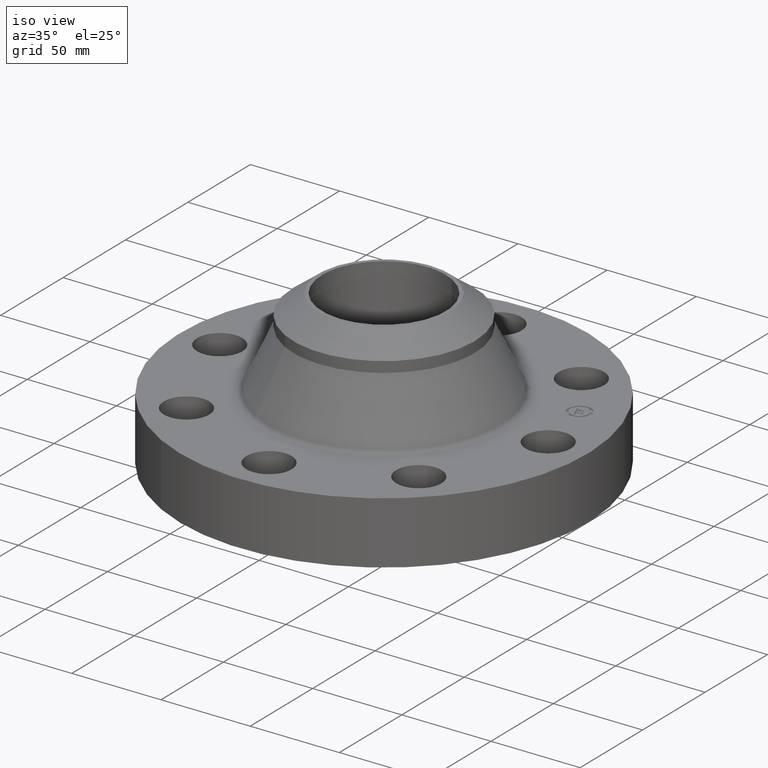
[diagram: clean part render]
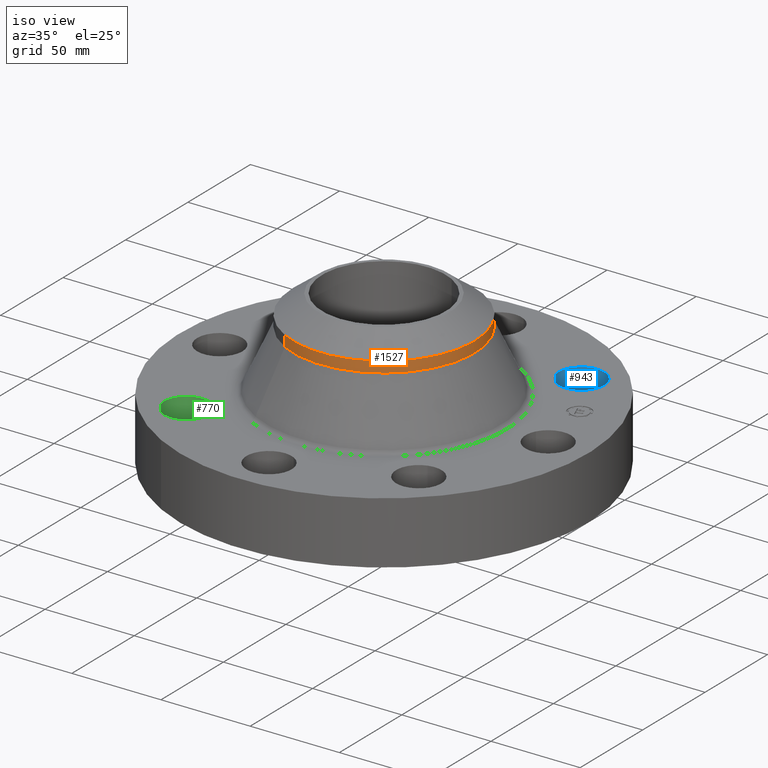
[diagram: same view with three faces highlighted in distinct colors, each labeled with its STEP entity id]
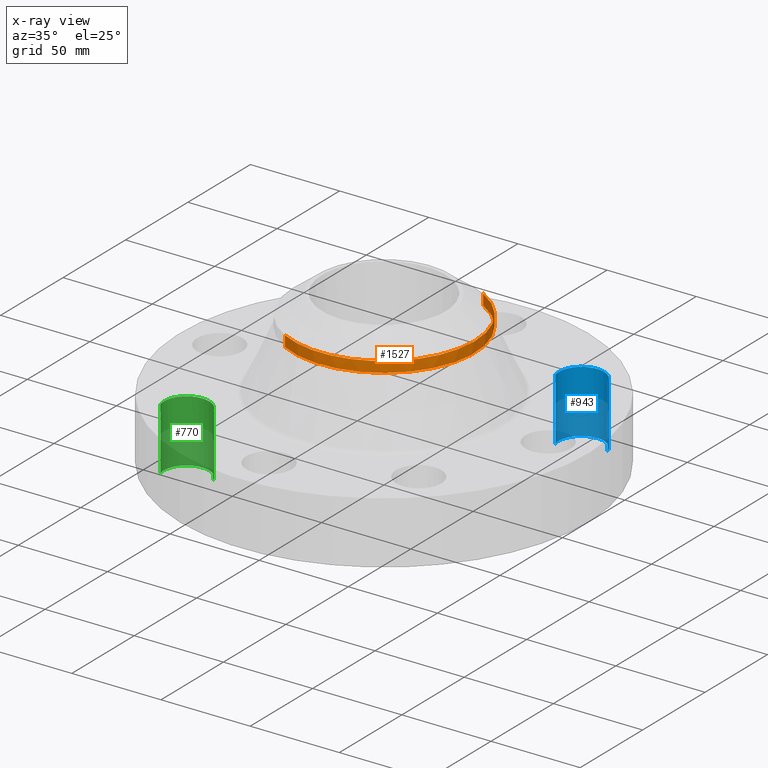
[diagram: x-ray of the same camera — body ghosted, the three highlighted faces saturated]
A machine part, iso view with three faces highlighted in distinct colors.
The next image is the same camera in x-ray (body ghosted, the three faces saturated) — at least one of them is partly hidden behind the body in this view.
Their STEP definitions:

[orange] entity #1527 — the highlighted cylindrical surface (partial cylindrical patch) has radius 50.8 mm, axis along (-0, 0, -1).
#1187=AXIS2_PLACEMENT_3D('Circle Axis2P3D',#1185,#1186,$) ;
#1506=AXIS2_PLACEMENT_3D('Cylinder Axis2P3D',#1503,#1504,#1505) ;
#1510=AXIS2_PLACEMENT_3D('Circle Axis2P3D',#1508,#1509,$) ;
#1517=AXIS2_PLACEMENT_3D('Circle Axis2P3D',#1515,#1516,$) ;
#1151=CARTESIAN_POINT('Vertex',(-0.958851077212,-1.75516512379,2.71617901109)) ;
#1158=CARTESIAN_POINT('Vertex',(0.958851077214,1.75516512379,2.71617901109)) ;
#1185=CARTESIAN_POINT('Axis2P3D Location',(0.,0.,2.71617901109)) ;
#1462=CARTESIAN_POINT('Line Origine',(0.958851077214,1.75516512379,2.83428924731)) ;
#1466=CARTESIAN_POINT('Vertex',(0.958851077214,1.75516512379,2.95239948353)) ;
#1469=CARTESIAN_POINT('Line Origine',(-0.958851077214,-1.75516512379,2.83428924731)) ;
#1473=CARTESIAN_POINT('Vertex',(-0.958851077212,-1.75516512379,2.95239948353)) ;
#1503=CARTESIAN_POINT('Axis2P3D Location',(0.,0.,1.56500000001)) ;
#1508=CARTESIAN_POINT('Axis2P3D Location',(0.,0.,2.95239948353)) ;
#1512=CARTESIAN_POINT('Vertex',(0.958851077212,-1.75516512379,2.95239948353)) ;
#1515=CARTESIAN_POINT('Axis2P3D Location',(0.,0.,2.95239948353)) ;
#1186=DIRECTION('Axis2P3D Direction',(-0.,0.,-0.0393700787402)) ;
#1463=DIRECTION('Vector Direction',(0.,0.,-0.0393700787402)) ;
#1470=DIRECTION('Vector Direction',(0.,0.,-0.0393700787402)) ;
#1504=DIRECTION('Axis2P3D Direction',(-0.,0.,-0.0393700787402)) ;
#1505=DIRECTION('Axis2P3D XDirection',(0.0188750212049,0.0345504945626,-0.)) ;
#1509=DIRECTION('Axis2P3D Direction',(-0.,0.,-0.0393700787402)) ;
#1516=DIRECTION('Axis2P3D Direction',(-0.,0.,-0.0393700787402)) ;
#1464=VECTOR('Line Direction',#1463,0.0393700787402) ;
#1471=VECTOR('Line Direction',#1470,0.0393700787402) ;
#1521=ORIENTED_EDGE('',*,*,#1475,.F.) ;
#1522=ORIENTED_EDGE('',*,*,#1189,.F.) ;
#1523=ORIENTED_EDGE('',*,*,#1468,.T.) ;
#1524=ORIENTED_EDGE('',*,*,#1514,.F.) ;
#1525=ORIENTED_EDGE('',*,*,#1519,.T.) ;
#1527=ADVANCED_FACE('PartBody',(#1526),#1507,.T.) ;
#1188=CIRCLE('generated circle',#1187,2.00000000001) ;
#1511=CIRCLE('generated circle',#1510,2.00000000001) ;
#1518=CIRCLE('generated circle',#1517,2.00000000001) ;
#1507=CYLINDRICAL_SURFACE('generated cylinder',#1506,2.00000000001) ;
#1189=EDGE_CURVE('',#1159,#1152,#1188,.T.) ;
#1468=EDGE_CURVE('',#1159,#1467,#1465,.F.) ;
#1475=EDGE_CURVE('',#1152,#1474,#1472,.F.) ;
#1514=EDGE_CURVE('',#1513,#1467,#1511,.F.) ;
#1519=EDGE_CURVE('',#1513,#1474,#1518,.T.) ;
#1520=EDGE_LOOP('',(#1521,#1522,#1523,#1524,#1525)) ;
#1526=FACE_OUTER_BOUND('',#1520,.T.) ;
#1465=LINE('Line',#1462,#1464) ;
#1472=LINE('Line',#1469,#1471) ;
#1152=VERTEX_POINT('',#1151) ;
#1159=VERTEX_POINT('',#1158) ;
#1467=VERTEX_POINT('',#1466) ;
#1474=VERTEX_POINT('',#1473) ;
#1513=VERTEX_POINT('',#1512) ;

[blue] entity #943 — the highlighted cylindrical surface (edge-blend (fillet) strip) has radius 12.7 mm, axis along (0, 0, -1).
#291=AXIS2_PLACEMENT_3D('Circle Axis2P3D',#289,#290,$) ;
#479=AXIS2_PLACEMENT_3D('Circle Axis2P3D',#477,#478,$) ;
#925=AXIS2_PLACEMENT_3D('Cylinder Axis2P3D',#922,#923,#924) ;
#289=CARTESIAN_POINT('Axis2P3D Location',(2.56326208185,2.56326208181,0.)) ;
#293=CARTESIAN_POINT('Vertex',(2.08348726685,2.42249231627,0.)) ;
#295=CARTESIAN_POINT('Vertex',(3.04303689684,2.7040318474,0.)) ;
#472=CARTESIAN_POINT('Vertex',(3.0430368968,2.70403184738,1.37999999999)) ;
#474=CARTESIAN_POINT('Vertex',(2.08348726682,2.42249231624,1.37999999999)) ;
#477=CARTESIAN_POINT('Axis2P3D Location',(2.56326208183,2.56326208184,1.38000000001)) ;
#922=CARTESIAN_POINT('Axis2P3D Location',(2.56326208181,2.56326208181,1.37606299213)) ;
#927=CARTESIAN_POINT('Line Origine',(2.08348726682,2.42249231624,0.690000000005)) ;
#932=CARTESIAN_POINT('Line Origine',(3.0430368968,2.70403184738,0.690000000005)) ;
#290=DIRECTION('Axis2P3D Direction',(0.,0.,-0.0393700787402)) ;
#478=DIRECTION('Axis2P3D Direction',(0.,0.,-0.0393700787402)) ;
#923=DIRECTION('Axis2P3D Direction',(0.,0.,-0.0393700787402)) ;
#924=DIRECTION('Axis2P3D XDirection',(-0.0377775444876,-0.0110842335096,0.)) ;
#928=DIRECTION('Vector Direction',(0.,0.,-0.0393700787402)) ;
#933=DIRECTION('Vector Direction',(0.,0.,-0.0393700787402)) ;
#929=VECTOR('Line Direction',#928,0.0393700787402) ;
#934=VECTOR('Line Direction',#933,0.0393700787402) ;
#938=ORIENTED_EDGE('',*,*,#931,.F.) ;
#939=ORIENTED_EDGE('',*,*,#297,.T.) ;
#940=ORIENTED_EDGE('',*,*,#936,.T.) ;
#941=ORIENTED_EDGE('',*,*,#481,.F.) ;
#943=ADVANCED_FACE('PartBody',(#942),#926,.F.) ;
#292=CIRCLE('generated circle',#291,0.5) ;
#480=CIRCLE('generated circle',#479,0.5) ;
#926=CYLINDRICAL_SURFACE('generated cylinder',#925,0.500000000002) ;
#297=EDGE_CURVE('',#294,#296,#292,.T.) ;
#481=EDGE_CURVE('',#475,#473,#480,.T.) ;
#931=EDGE_CURVE('',#294,#475,#930,.F.) ;
#936=EDGE_CURVE('',#296,#473,#935,.F.) ;
#937=EDGE_LOOP('',(#938,#939,#940,#941)) ;
#942=FACE_OUTER_BOUND('',#937,.T.) ;
#930=LINE('Line',#927,#929) ;
#935=LINE('Line',#932,#934) ;
#294=VERTEX_POINT('',#293) ;
#296=VERTEX_POINT('',#295) ;
#473=VERTEX_POINT('',#472) ;
#475=VERTEX_POINT('',#474) ;

[green] entity #770 — the highlighted cylindrical surface (edge-blend (fillet) strip) has radius 12.7 mm, axis along (-0, 0, -1).
#228=AXIS2_PLACEMENT_3D('Circle Axis2P3D',#226,#227,$) ;
#398=AXIS2_PLACEMENT_3D('Circle Axis2P3D',#396,#397,$) ;
#762=AXIS2_PLACEMENT_3D('Cylinder Axis2P3D',#759,#760,#761) ;
#221=CARTESIAN_POINT('Vertex',(-2.08348726685,-2.42249231622,0.)) ;
#223=CARTESIAN_POINT('Vertex',(-3.04303689684,-2.70403184735,0.)) ;
#226=CARTESIAN_POINT('Axis2P3D Location',(-2.56326208183,-2.56326208183,0.)) ;
#396=CARTESIAN_POINT('Axis2P3D Location',(-2.56326208185,-2.56326208179,1.38000000001)) ;
#400=CARTESIAN_POINT('Vertex',(-3.0430368968,-2.70403184738,1.37999999999)) ;
#402=CARTESIAN_POINT('Vertex',(-2.08348726682,-2.42249231624,1.37999999999)) ;
#735=CARTESIAN_POINT('Line Origine',(-2.08348726682,-2.42249231624,0.690000000005)) ;
#740=CARTESIAN_POINT('Line Origine',(-3.0430368968,-2.70403184738,0.690000000005)) ;
#759=CARTESIAN_POINT('Axis2P3D Location',(-2.56326208181,-2.56326208181,1.37606299213)) ;
#227=DIRECTION('Axis2P3D Direction',(0.,0.,-0.0393700787402)) ;
#397=DIRECTION('Axis2P3D Direction',(0.,0.,-0.0393700787402)) ;
#736=DIRECTION('Vector Direction',(0.,0.,-0.0393700787402)) ;
#741=DIRECTION('Vector Direction',(0.,0.,-0.0393700787402)) ;
#760=DIRECTION('Axis2P3D Direction',(-0.,0.,-0.0393700787402)) ;
#761=DIRECTION('Axis2P3D XDirection',(-0.0377775444876,-0.0110842335096,0.)) ;
#737=VECTOR('Line Direction',#736,0.0393700787402) ;
#742=VECTOR('Line Direction',#741,0.0393700787402) ;
#765=ORIENTED_EDGE('',*,*,#744,.F.) ;
#766=ORIENTED_EDGE('',*,*,#230,.T.) ;
#767=ORIENTED_EDGE('',*,*,#739,.T.) ;
#768=ORIENTED_EDGE('',*,*,#404,.F.) ;
#770=ADVANCED_FACE('PartBody',(#769),#763,.F.) ;
#229=CIRCLE('generated circle',#228,0.5) ;
#399=CIRCLE('generated circle',#398,0.5) ;
#763=CYLINDRICAL_SURFACE('generated cylinder',#762,0.500000000002) ;
#230=EDGE_CURVE('',#224,#222,#229,.T.) ;
#404=EDGE_CURVE('',#401,#403,#399,.T.) ;
#739=EDGE_CURVE('',#222,#403,#738,.F.) ;
#744=EDGE_CURVE('',#224,#401,#743,.F.) ;
#764=EDGE_LOOP('',(#765,#766,#767,#768)) ;
#769=FACE_OUTER_BOUND('',#764,.T.) ;
#738=LINE('Line',#735,#737) ;
#743=LINE('Line',#740,#742) ;
#222=VERTEX_POINT('',#221) ;
#224=VERTEX_POINT('',#223) ;
#401=VERTEX_POINT('',#400) ;
#403=VERTEX_POINT('',#402) ;